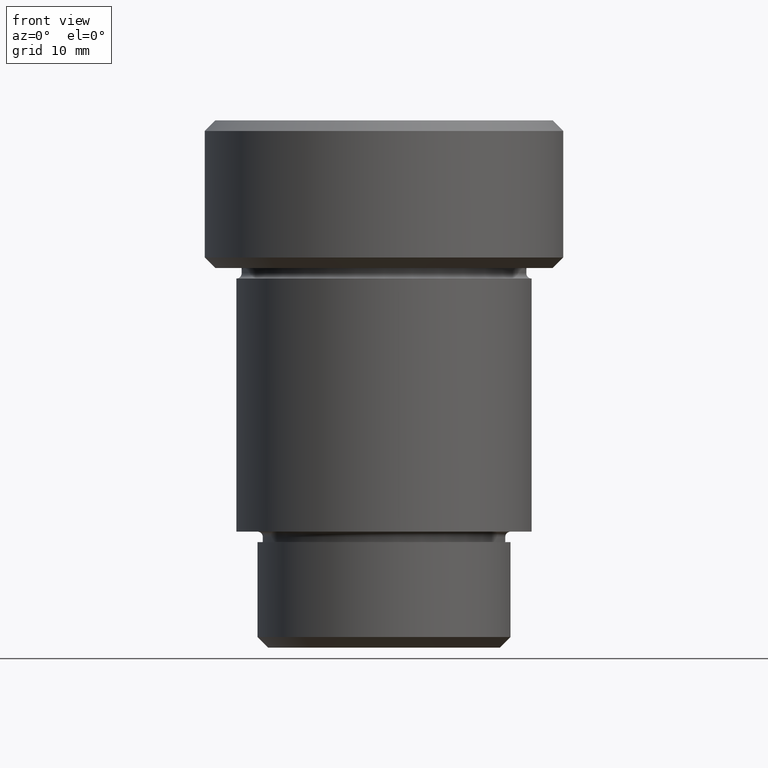
[diagram: clean part render]
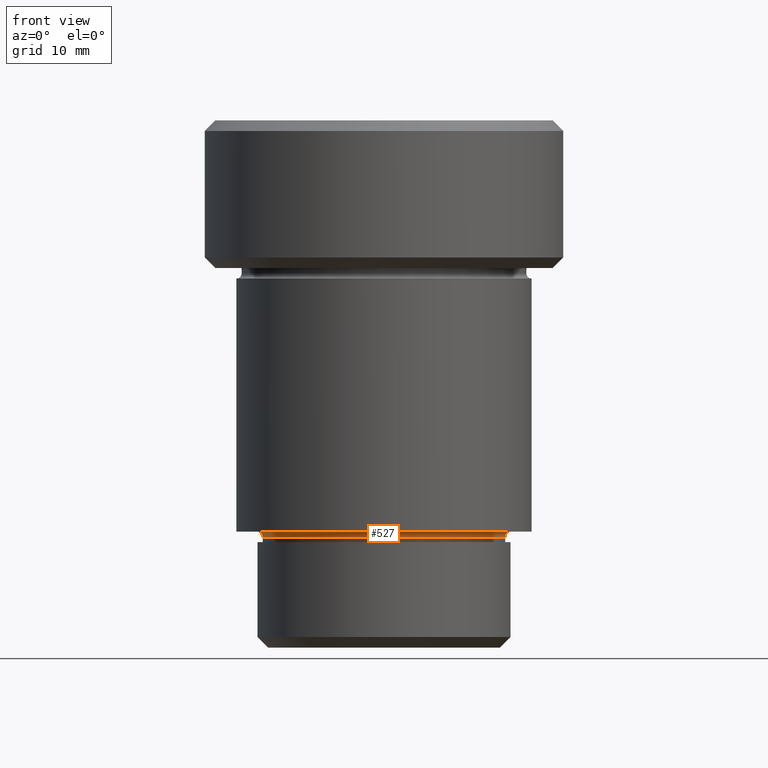
[diagram: same view with one face highlighted and labeled with its STEP entity id]
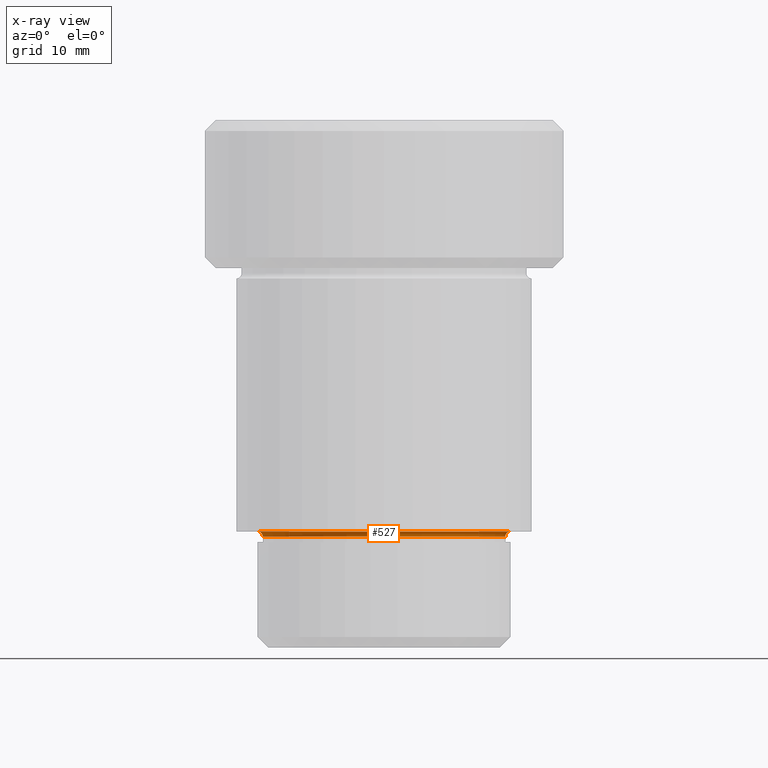
[diagram: x-ray of the same camera — body ghosted, the highlighted face saturated]
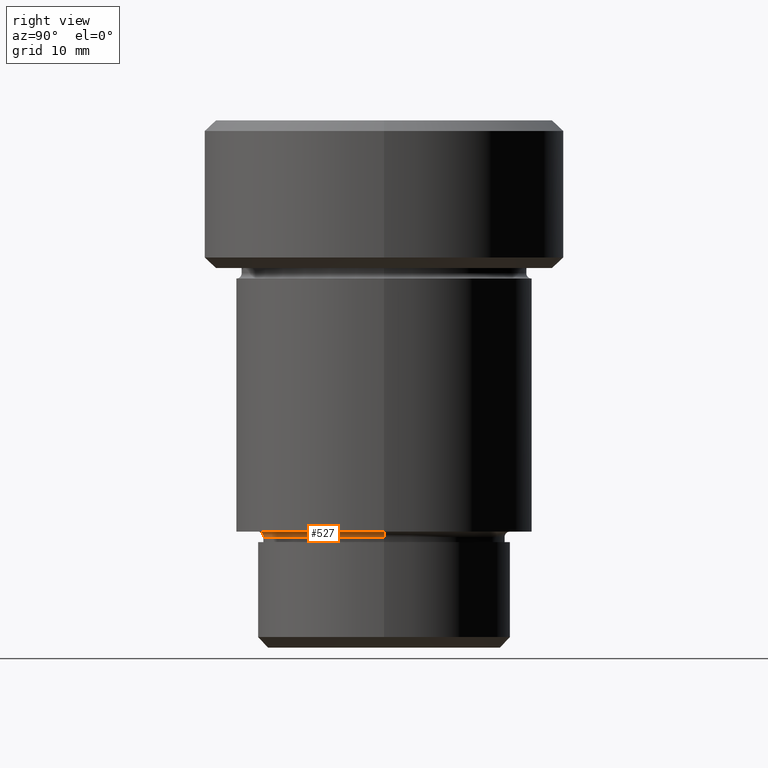
[diagram: same view with one face highlighted and labeled with its STEP entity id]
A machine part, front view. The second image highlights one B-rep face of the part: STEP entity #527.
The next image is the same camera in x-ray: the body ghosted, the highlighted face saturated — about 0% of this face is hidden behind the body in this view.
A second angle (right view) of the same face is appended — the face is thin or edge-on in the first view.
In plain terms, the highlighted toroidal blend (fillet) surface has major radius 12 mm and minor (blend) radius 0.5 mm.
Its self-contained STEP definition (entity closure, byte-faithful):
#10 = FACE_OUTER_BOUND ( 'NONE', #30, .T. ) ;
#21 = DIRECTION ( 'NONE',  ( -1.000000000000000000, 0.000000000000000000, 0.000000000000000000 ) ) ;
#27 = AXIS2_PLACEMENT_3D ( 'NONE', #117, #426, #251 ) ;
#30 = EDGE_LOOP ( 'NONE', ( #48, #511, #164, #147 ) ) ;
#48 = ORIENTED_EDGE ( 'NONE', *, *, #674, .F. ) ;
#49 = CARTESIAN_POINT ( 'NONE',  ( 0.000000000000000000, 0.000000000000000000, -39.00000000000000000 ) ) ;
#56 = DIRECTION ( 'NONE',  ( -0.000000000000000000, -0.000000000000000000, 1.000000000000000000 ) ) ;
#87 = VERTEX_POINT ( 'NONE', #106 ) ;
#106 = CARTESIAN_POINT ( 'NONE',  ( -12.00000000000000355, 0.000000000000000000, -39.00000000000000000 ) ) ;
#117 = CARTESIAN_POINT ( 'NONE',  ( 12.00000000000000355, 1.469576158976824342E-15, -39.50000000000000000 ) ) ;
#147 = ORIENTED_EDGE ( 'NONE', *, *, #220, .F. ) ;
#164 = ORIENTED_EDGE ( 'NONE', *, *, #200, .F. ) ;
#171 = CARTESIAN_POINT ( 'NONE',  ( 12.00000000000000355, 1.469576158976824342E-15, -39.00000000000000000 ) ) ;
#194 = VERTEX_POINT ( 'NONE', #171 ) ;
#200 = EDGE_CURVE ( 'NONE', #87, #194, #479, .T. ) ;
#201 = AXIS2_PLACEMENT_3D ( 'NONE', #49, #56, #230 ) ;
#203 = CARTESIAN_POINT ( 'NONE',  ( -11.50000000000000355, 1.408343819019456570E-15, -39.50000000000000000 ) ) ;
#209 = AXIS2_PLACEMENT_3D ( 'NONE', #704, #277, #483 ) ;
#220 = EDGE_CURVE ( 'NONE', #529, #87, #275, .T. ) ;
#230 = DIRECTION ( 'NONE',  ( -1.000000000000000000, 0.000000000000000000, 0.000000000000000000 ) ) ;
#234 = CIRCLE ( 'NONE', #209, 11.50000000000000355 ) ;
#235 = DIRECTION ( 'NONE',  ( 0.000000000000000000, 0.000000000000000000, -1.000000000000000000 ) ) ;
#241 = DIRECTION ( 'NONE',  ( -0.000000000000000000, -1.000000000000000000, -0.000000000000000000 ) ) ;
#251 = DIRECTION ( 'NONE',  ( -1.000000000000000000, -1.224646799147353454E-16, 0.000000000000000000 ) ) ;
#269 = CARTESIAN_POINT ( 'NONE',  ( 11.50000000000000355, 0.000000000000000000, -39.50000000000000000 ) ) ;
#275 = CIRCLE ( 'NONE', #732, 0.5000000000000004441 ) ;
#277 = DIRECTION ( 'NONE',  ( 0.000000000000000000, 0.000000000000000000, -1.000000000000000000 ) ) ;
#332 = CARTESIAN_POINT ( 'NONE',  ( 0.000000000000000000, 0.000000000000000000, -39.50000000000000000 ) ) ;
#340 = AXIS2_PLACEMENT_3D ( 'NONE', #332, #451, #21 ) ;
#342 = EDGE_CURVE ( 'NONE', #531, #194, #496, .T. ) ;
#426 = DIRECTION ( 'NONE',  ( -1.224646799147353207E-16, 1.000000000000000000, 0.000000000000000000 ) ) ;
#451 = DIRECTION ( 'NONE',  ( 0.000000000000000000, 0.000000000000000000, -1.000000000000000000 ) ) ;
#479 = CIRCLE ( 'NONE', #201, 12.00000000000000355 ) ;
#483 = DIRECTION ( 'NONE',  ( -1.000000000000000000, 0.000000000000000000, 0.000000000000000000 ) ) ;
#496 = CIRCLE ( 'NONE', #27, 0.5000000000000004441 ) ;
#511 = ORIENTED_EDGE ( 'NONE', *, *, #342, .T. ) ;
#527 = ADVANCED_FACE ( 'NONE', ( #10 ), #675, .F. ) ;
#529 = VERTEX_POINT ( 'NONE', #203 ) ;
#531 = VERTEX_POINT ( 'NONE', #269 ) ;
#674 = EDGE_CURVE ( 'NONE', #531, #529, #234, .T. ) ;
#675 = TOROIDAL_SURFACE ( 'NONE', #340, 12.00000000000000355, 0.5000000000000000000 ) ;
#704 = CARTESIAN_POINT ( 'NONE',  ( 0.000000000000000000, 0.000000000000000000, -39.50000000000000000 ) ) ;
#732 = AXIS2_PLACEMENT_3D ( 'NONE', #781, #241, #235 ) ;
#781 = CARTESIAN_POINT ( 'NONE',  ( -12.00000000000000355, 0.000000000000000000, -39.50000000000000000 ) ) ;